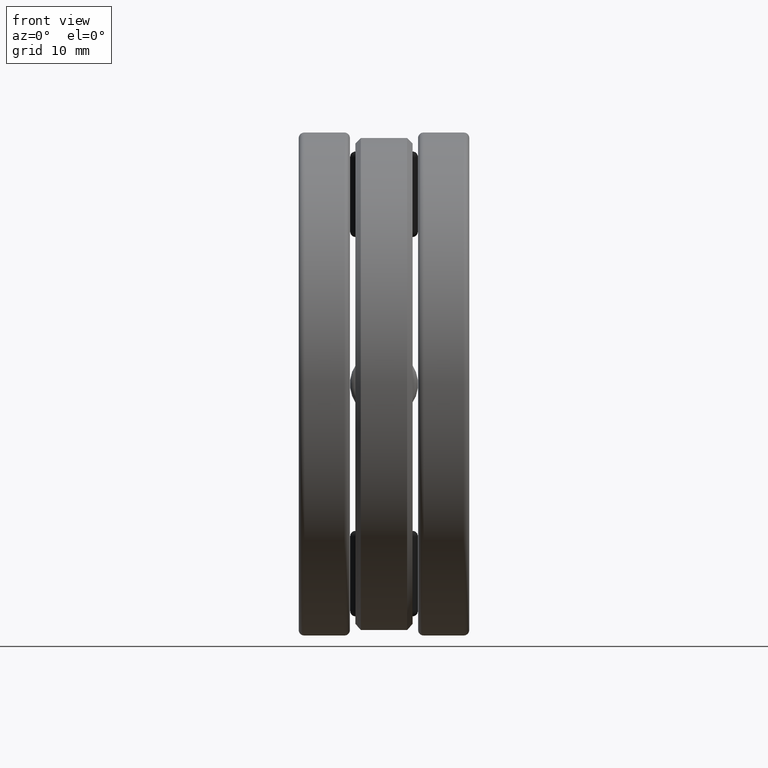
[diagram: clean part render]
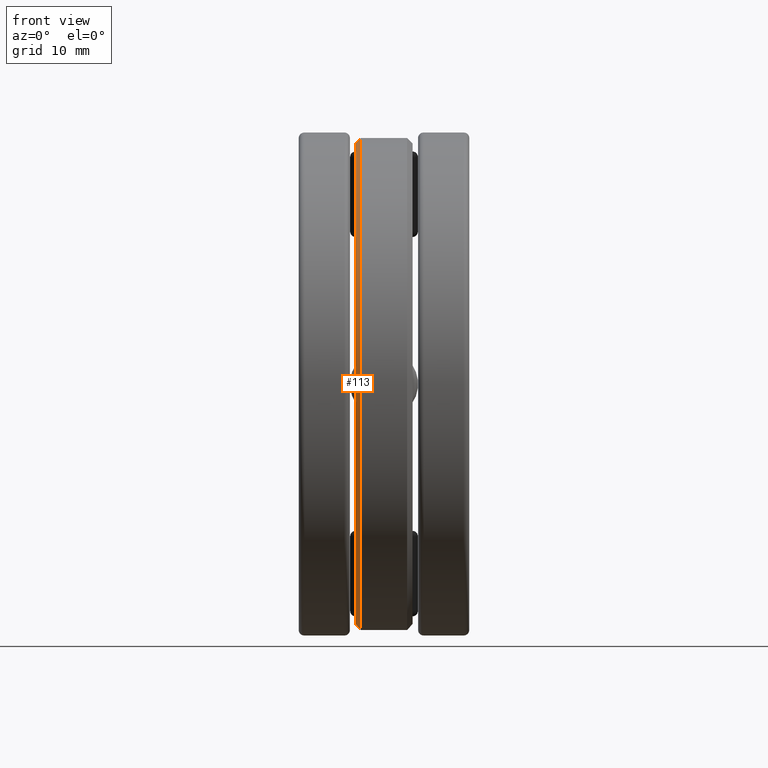
[diagram: same view with one face highlighted and labeled with its STEP entity id]
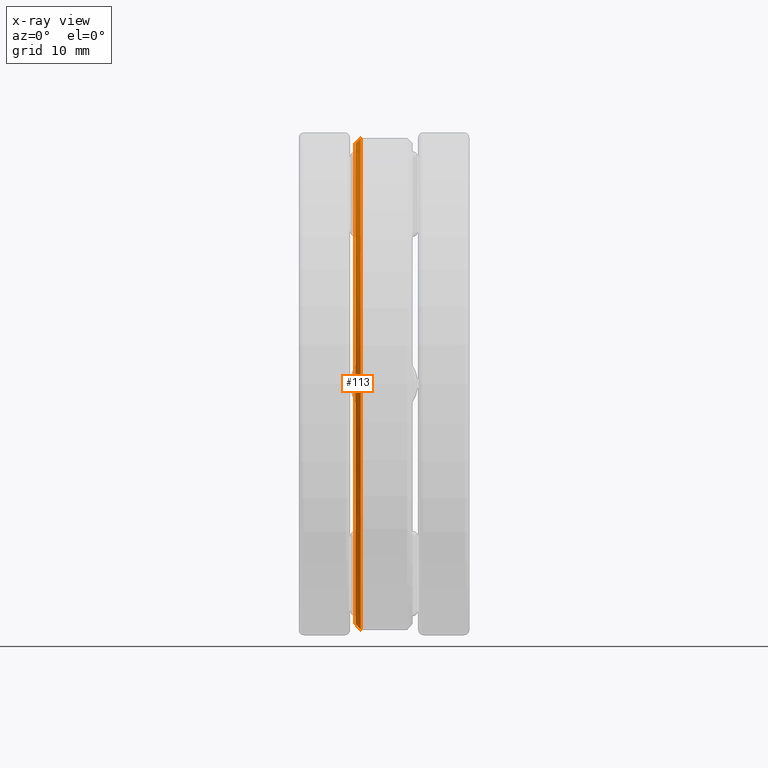
[diagram: x-ray of the same camera — body ghosted, the highlighted face saturated]
A machine part, front view. The second image highlights one B-rep face of the part: STEP entity #113.
The next image is the same camera in x-ray: the body ghosted, the highlighted face saturated — about 0% of this face is hidden behind the body in this view.
In plain terms, the highlighted conical surface has half-angle 45 deg.
Its self-contained STEP definition (entity closure, byte-faithful):
#19 = FACE_OUTER_BOUND ( 'NONE', #475, .T. ) ;
#35 = CARTESIAN_POINT ( 'NONE',  ( -0.08499999999999981200, 0.0000000000000000000, 0.9018749999999995400 ) ) ;
#47 = CARTESIAN_POINT ( 'NONE',  ( -0.1049999999999998000, 0.0000000000000000000, 0.8818749999999996300 ) ) ;
#113 = ADVANCED_FACE ( 'NONE', ( #19, #224 ), #544, .T. ) ;
#129 = ORIENTED_EDGE ( 'NONE', *, *, #146, .T. ) ;
#146 = EDGE_CURVE ( 'NONE', #411, #411, #242, .T. ) ;
#170 = CARTESIAN_POINT ( 'NONE',  ( -0.08499999999999981200, 0.0000000000000000000, 0.0000000000000000000 ) ) ;
#178 = CARTESIAN_POINT ( 'NONE',  ( -0.1049999999999998000, 0.0000000000000000000, 0.0000000000000000000 ) ) ;
#219 = DIRECTION ( 'NONE',  ( 0.0000000000000000000, 0.0000000000000000000, 1.000000000000000000 ) ) ;
#224 = FACE_BOUND ( 'NONE', #1186, .T. ) ;
#242 = CIRCLE ( 'NONE', #445, 0.9018749999999995400 ) ;
#411 = VERTEX_POINT ( 'NONE', #35 ) ;
#435 = CARTESIAN_POINT ( 'NONE',  ( -0.1049999999999998000, 0.0000000000000000000, 0.0000000000000000000 ) ) ;
#445 = AXIS2_PLACEMENT_3D ( 'NONE', #170, #1314, #1079 ) ;
#451 = CIRCLE ( 'NONE', #1330, 0.8818749999999996300 ) ;
#475 = EDGE_LOOP ( 'NONE', ( #129 ) ) ;
#510 = ORIENTED_EDGE ( 'NONE', *, *, #1234, .F. ) ;
#544 = CONICAL_SURFACE ( 'NONE', #1377, 0.8818749999999996300, 0.7853981633974466100 ) ;
#886 = DIRECTION ( 'NONE',  ( -1.000000000000000000, -0.0000000000000000000, -0.0000000000000000000 ) ) ;
#976 = DIRECTION ( 'NONE',  ( 1.000000000000000000, 0.0000000000000000000, 0.0000000000000000000 ) ) ;
#1079 = DIRECTION ( 'NONE',  ( 0.0000000000000000000, 0.0000000000000000000, 1.000000000000000000 ) ) ;
#1099 = DIRECTION ( 'NONE',  ( 0.0000000000000000000, 0.0000000000000000000, -1.000000000000000000 ) ) ;
#1186 = EDGE_LOOP ( 'NONE', ( #510 ) ) ;
#1234 = EDGE_CURVE ( 'NONE', #1449, #1449, #451, .T. ) ;
#1314 = DIRECTION ( 'NONE',  ( -1.000000000000000000, -0.0000000000000000000, -0.0000000000000000000 ) ) ;
#1330 = AXIS2_PLACEMENT_3D ( 'NONE', #435, #886, #219 ) ;
#1377 = AXIS2_PLACEMENT_3D ( 'NONE', #178, #976, #1099 ) ;
#1449 = VERTEX_POINT ( 'NONE', #47 ) ;